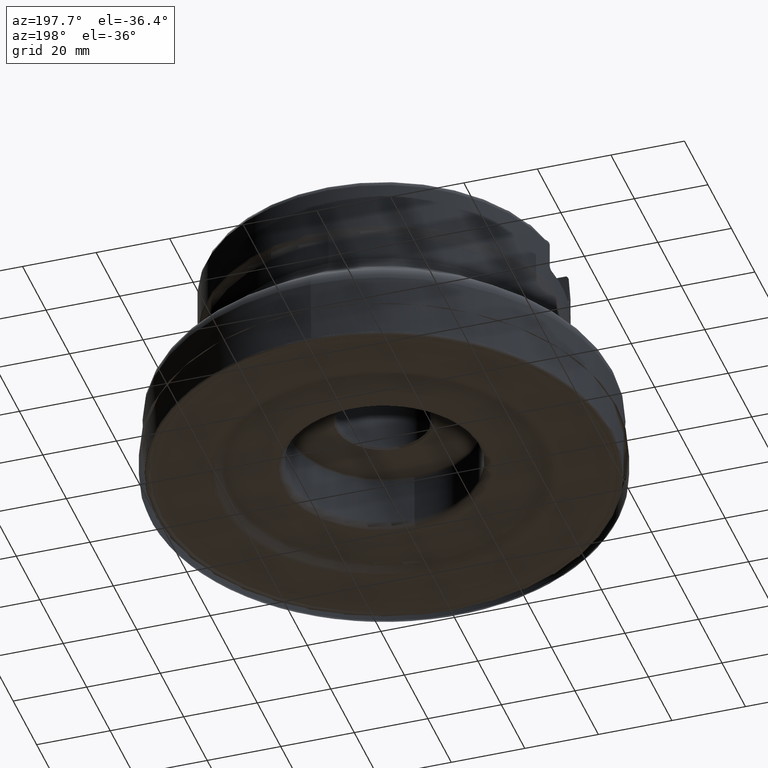
[diagram: clean part render]
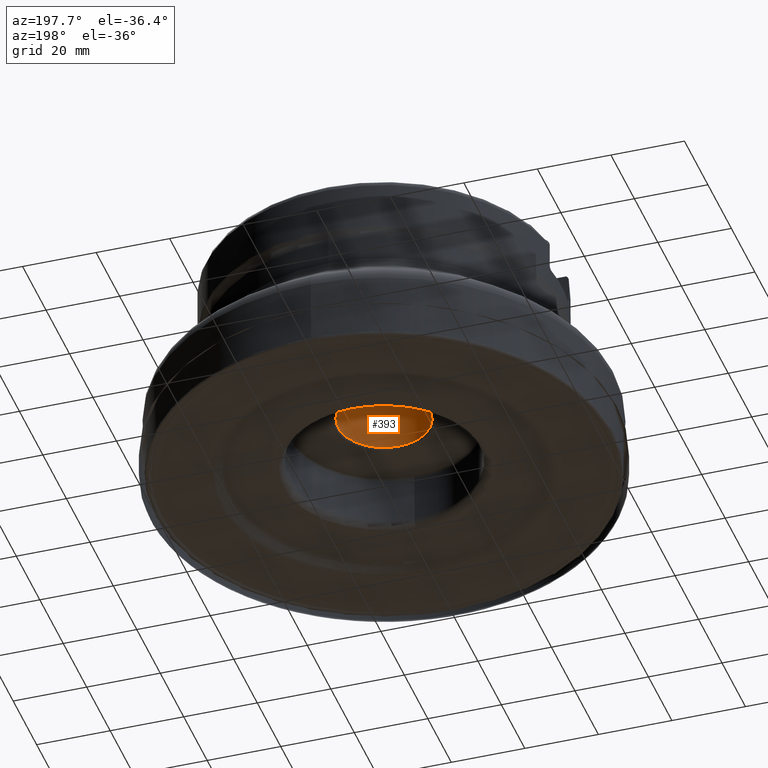
[diagram: same view with one face highlighted and labeled with its STEP entity id]
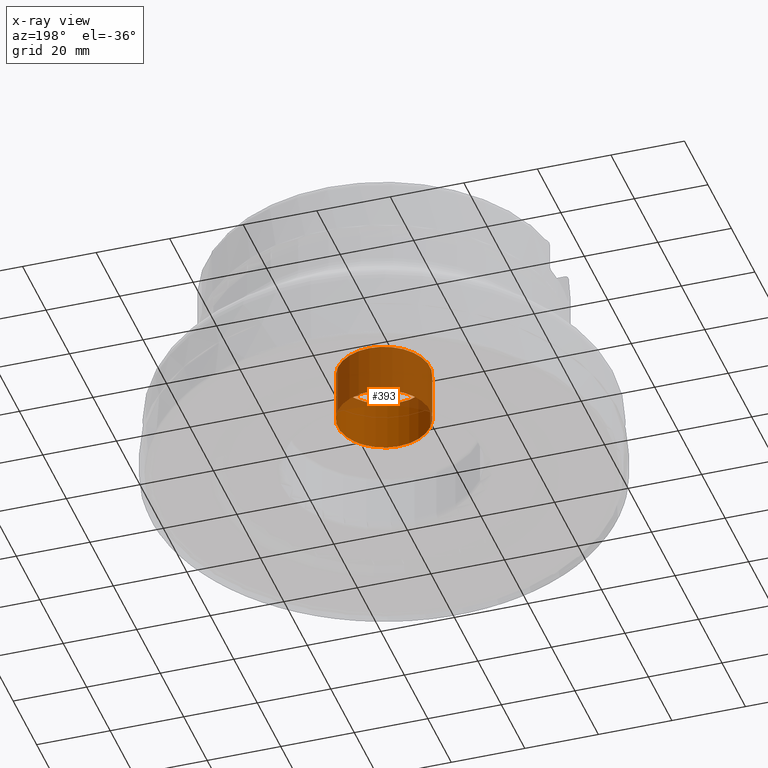
[diagram: x-ray of the same camera — body ghosted, the highlighted face saturated]
A machine part, auxiliary view. The second image highlights one B-rep face of the part: STEP entity #393.
The next image is the same camera in x-ray: the body ghosted, the highlighted face saturated — about 60% of this face is hidden behind the body in this view.
In plain terms, the highlighted cylindrical surface (bore or boss wall) has radius 12.5 mm, axis along (-0, -0, -1).
Its self-contained STEP definition (entity closure, byte-faithful):
#166=CYLINDRICAL_SURFACE('',#1268,12.5);
#192=FACE_BOUND('',#518,.T.);
#193=FACE_BOUND('',#519,.T.);
#393=ADVANCED_FACE('',(#192,#193),#166,.F.);
#518=EDGE_LOOP('',(#817));
#519=EDGE_LOOP('',(#818));
#639=CIRCLE('',#1266,12.5);
#640=CIRCLE('',#1267,12.5);
#817=ORIENTED_EDGE('',*,*,#1093,.T.);
#818=ORIENTED_EDGE('',*,*,#1094,.T.);
#974=VERTEX_POINT('',#2263);
#975=VERTEX_POINT('',#2265);
#1093=EDGE_CURVE('',#974,#974,#639,.T.);
#1094=EDGE_CURVE('',#975,#975,#640,.T.);
#1266=AXIS2_PLACEMENT_3D('',#2262,#1486,#1487);
#1267=AXIS2_PLACEMENT_3D('',#2264,#1488,#1489);
#1268=AXIS2_PLACEMENT_3D('',#2266,#1490,#1491);
#1486=DIRECTION('',(-4.47319432837584E-16,-1.56003342320133E-15,-1.));
#1487=DIRECTION('',(1.08268785724004E-15,-1.,1.66533453693773E-15));
#1488=DIRECTION('',(4.47319432837584E-16,1.56003342320133E-15,1.));
#1489=DIRECTION('',(-1.08268785724004E-15,1.,-1.66533453693773E-15));
#1490=DIRECTION('',(-4.47319432837584E-16,-1.56003342320133E-15,-1.));
#1491=DIRECTION('',(-1.08268785724004E-15,1.,-1.56003342320133E-15));
#2262=CARTESIAN_POINT('',(8.45478460006318E-15,2.94861917319283E-14,18.901));
#2263=CARTESIAN_POINT('',(2.19883828155637E-14,-12.5,18.901));
#2264=CARTESIAN_POINT('',(1.47172566597894E-14,5.13266596567469E-14,32.901));
#2265=CARTESIAN_POINT('',(1.18365844428883E-15,12.5000000000001,32.901));
#2266=CARTESIAN_POINT('',(0.,0.,0.));